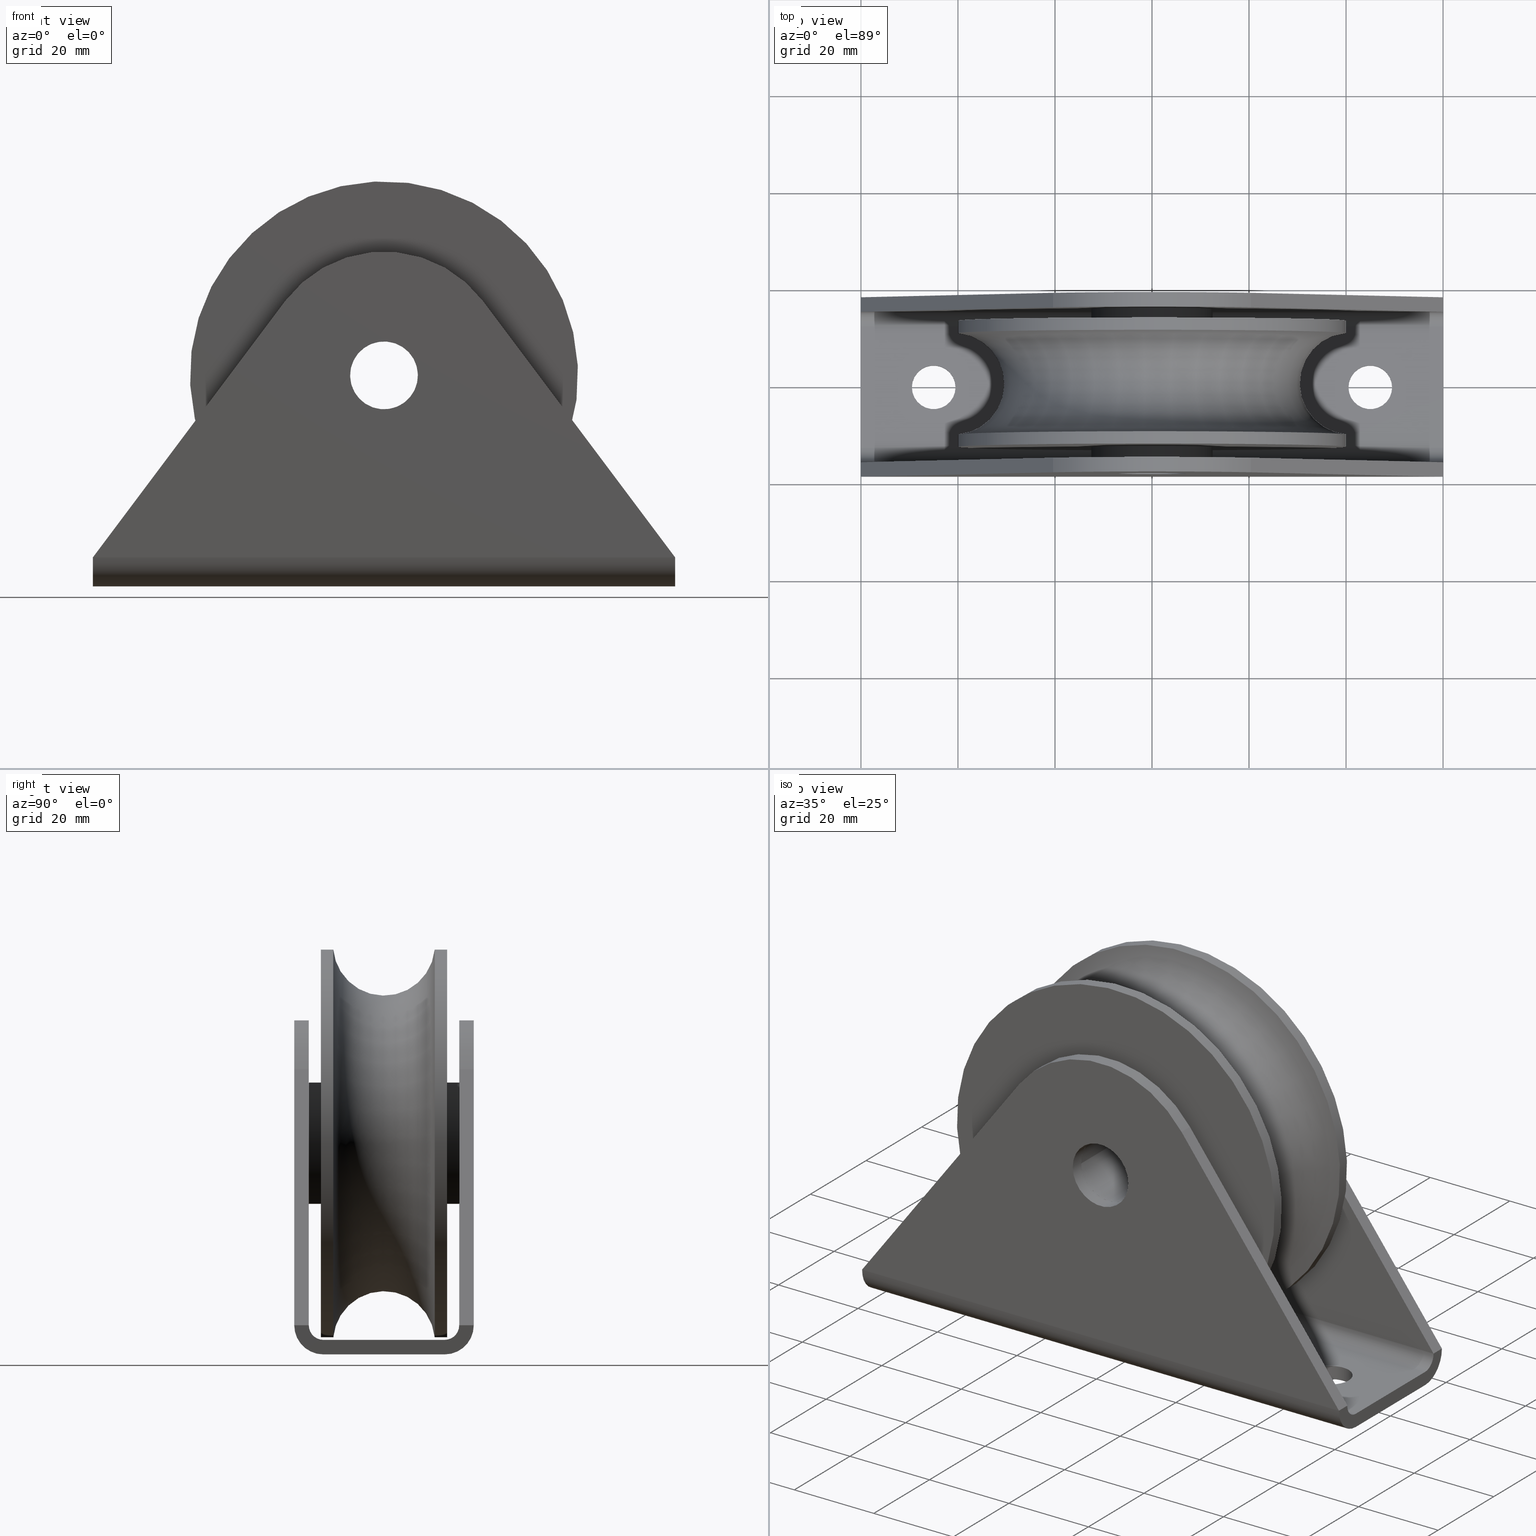
[diagram: canonical four-view strip — front | top / right | iso, engineering-drawing reading convention]
A machine part, canonical four-view strip (front | top / right | iso — engineering-drawing reading convention). The complete STEP part file that produces these views, byte-faithful:
ISO-10303-21;
HEADER;
/* Generated by software containing ST-Developer
 * from STEP Tools, Inc. (www.steptools.com) 
 */

FILE_DESCRIPTION(
/* description */ ('Lamiera'),
/* implementation_level */ '2;1');

FILE_NAME(
/* name */ 
'Q:\\Catalogo\\2_Accessori Dierre\\Per Download Web e catalogo cartace
o\\CATALOGO PIEDI E SOSTEGNI\\PAGINA 53\\CRUCC0000003.stp',
/* time_stamp */ '2018-11-06T11:19:53+01:00',
/* author */ ('fzagni'),
/* organization */ (''),
/* preprocessor_version */ 'ST-DEVELOPER v16.1',
/* originating_system */ 'Autodesk Inventor 2016',
/* authorisation */ '');

FILE_SCHEMA (('AUTOMOTIVE_DESIGN { 1 0 10303 214 3 1 1 }'));
ENDSEC;

DATA;
#10=MECHANICAL_DESIGN_GEOMETRIC_PRESENTATION_REPRESENTATION('',(#25,#24),
#936);
#11=ITEM_DEFINED_TRANSFORMATION($,$,#539,#608);
#12=ITEM_DEFINED_TRANSFORMATION($,$,#586,#609);
#13=(
REPRESENTATION_RELATIONSHIP($,$,#951,#953)
REPRESENTATION_RELATIONSHIP_WITH_TRANSFORMATION(#11)
SHAPE_REPRESENTATION_RELATIONSHIP()
);
#14=(
REPRESENTATION_RELATIONSHIP($,$,#952,#953)
REPRESENTATION_RELATIONSHIP_WITH_TRANSFORMATION(#12)
SHAPE_REPRESENTATION_RELATIONSHIP()
);
#15=CONTEXT_DEPENDENT_SHAPE_REPRESENTATION(#13,#949);
#16=CONTEXT_DEPENDENT_SHAPE_REPRESENTATION(#14,#950);
#17=NEXT_ASSEMBLY_USAGE_OCCURRENCE('3DSD002097.ipt:2',
'3DSD002097.ipt:2','3DSD002097.ipt:2',#957,#955,'3DSD002097.ipt:2');
#18=NEXT_ASSEMBLY_USAGE_OCCURRENCE('3DSD002096.ipt:3',
'3DSD002096.ipt:3','3DSD002096.ipt:3',#957,#956,'3DSD002096.ipt:3');
#19=TOROIDAL_SURFACE('',#596,41.,10.5);
#20=SHAPE_REPRESENTATION_RELATIONSHIP('SRR','None',#951,#22);
#21=SHAPE_REPRESENTATION_RELATIONSHIP('SRR','None',#952,#23);
#22=ADVANCED_BREP_SHAPE_REPRESENTATION('',(#26),#933);
#23=ADVANCED_BREP_SHAPE_REPRESENTATION('',(#27),#934);
#24=STYLED_ITEM('',(#970),#26);
#25=STYLED_ITEM('',(#970),#27);
#26=MANIFOLD_SOLID_BREP('Solido1',#537);
#27=MANIFOLD_SOLID_BREP('Solido1',#538);
#28=LINE('',#798,#60);
#29=LINE('',#800,#61);
#30=LINE('',#802,#62);
#31=LINE('',#803,#63);
#32=LINE('',#807,#64);
#33=LINE('',#809,#65);
#34=LINE('',#811,#66);
#35=LINE('',#812,#67);
#36=LINE('',#821,#68);
#37=LINE('',#824,#69);
#38=LINE('',#827,#70);
#39=LINE('',#829,#71);
#40=LINE('',#830,#72);
#41=LINE('',#833,#73);
#42=LINE('',#835,#74);
#43=LINE('',#836,#75);
#44=LINE('',#838,#76);
#45=LINE('',#842,#77);
#46=LINE('',#855,#78);
#47=LINE('',#858,#79);
#48=LINE('',#862,#80);
#49=LINE('',#865,#81);
#50=LINE('',#868,#82);
#51=LINE('',#870,#83);
#52=LINE('',#874,#84);
#53=LINE('',#879,#85);
#54=LINE('',#882,#86);
#55=LINE('',#886,#87);
#56=LINE('',#888,#88);
#57=LINE('',#889,#89);
#58=LINE('',#891,#90);
#59=LINE('',#893,#91);
#60=VECTOR('',#626,66.);
#61=VECTOR('',#627,3.);
#62=VECTOR('',#628,66.);
#63=VECTOR('',#629,3.);
#64=VECTOR('',#632,66.);
#65=VECTOR('',#633,3.);
#66=VECTOR('',#634,66.);
#67=VECTOR('',#635,3.);
#68=VECTOR('',#646,3.);
#69=VECTOR('',#649,3.);
#70=VECTOR('',#652,66.);
#71=VECTOR('',#653,3.);
#72=VECTOR('',#654,66.);
#73=VECTOR('',#657,66.);
#74=VECTOR('',#658,66.);
#75=VECTOR('',#659,3.);
#76=VECTOR('',#662,120.);
#77=VECTOR('',#667,120.);
#78=VECTOR('',#682,120.);
#79=VECTOR('',#687,120.);
#80=VECTOR('',#692,3.);
#81=VECTOR('',#695,3.);
#82=VECTOR('',#700,120.);
#83=VECTOR('',#703,120.);
#84=VECTOR('',#706,120.);
#85=VECTOR('',#713,3.);
#86=VECTOR('',#716,3.);
#87=VECTOR('',#723,120.);
#88=VECTOR('',#726,25.);
#89=VECTOR('',#727,25.);
#90=VECTOR('',#730,25.);
#91=VECTOR('',#733,25.);
#92=PLANE('',#546);
#93=PLANE('',#547);
#94=PLANE('',#554);
#95=PLANE('',#555);
#96=PLANE('',#556);
#97=PLANE('',#558);
#98=PLANE('',#567);
#99=PLANE('',#568);
#100=PLANE('',#570);
#101=PLANE('',#576);
#102=PLANE('',#578);
#103=PLANE('',#580);
#104=PLANE('',#582);
#105=PLANE('',#583);
#106=PLANE('',#584);
#107=PLANE('',#585);
#108=PLANE('',#587);
#109=PLANE('',#592);
#110=PLANE('',#600);
#111=PLANE('',#604);
#112=FACE_BOUND('',#171,.T.);
#113=FACE_BOUND('',#173,.T.);
#114=FACE_BOUND('',#181,.T.);
#115=FACE_BOUND('',#183,.T.);
#116=FACE_BOUND('',#185,.T.);
#117=FACE_BOUND('',#187,.T.);
#118=FACE_BOUND('',#190,.T.);
#119=FACE_BOUND('',#198,.T.);
#120=FACE_BOUND('',#202,.T.);
#121=FACE_BOUND('',#203,.T.);
#122=FACE_BOUND('',#206,.T.);
#123=FACE_BOUND('',#207,.T.);
#124=FACE_BOUND('',#209,.T.);
#125=FACE_BOUND('',#211,.T.);
#126=FACE_BOUND('',#213,.T.);
#127=FACE_BOUND('',#215,.T.);
#128=FACE_BOUND('',#217,.T.);
#129=FACE_BOUND('',#219,.T.);
#130=FACE_BOUND('',#221,.T.);
#131=FACE_BOUND('',#223,.T.);
#132=FACE_BOUND('',#225,.T.);
#133=FACE_BOUND('',#227,.T.);
#134=FACE_OUTER_BOUND('',#170,.T.);
#135=FACE_OUTER_BOUND('',#172,.T.);
#136=FACE_OUTER_BOUND('',#174,.T.);
#137=FACE_OUTER_BOUND('',#175,.T.);
#138=FACE_OUTER_BOUND('',#176,.T.);
#139=FACE_OUTER_BOUND('',#177,.T.);
#140=FACE_OUTER_BOUND('',#178,.T.);
#141=FACE_OUTER_BOUND('',#179,.T.);
#142=FACE_OUTER_BOUND('',#180,.T.);
#143=FACE_OUTER_BOUND('',#182,.T.);
#144=FACE_OUTER_BOUND('',#184,.T.);
#145=FACE_OUTER_BOUND('',#186,.T.);
#146=FACE_OUTER_BOUND('',#188,.T.);
#147=FACE_OUTER_BOUND('',#189,.T.);
#148=FACE_OUTER_BOUND('',#191,.T.);
#149=FACE_OUTER_BOUND('',#192,.T.);
#150=FACE_OUTER_BOUND('',#193,.T.);
#151=FACE_OUTER_BOUND('',#194,.T.);
#152=FACE_OUTER_BOUND('',#195,.T.);
#153=FACE_OUTER_BOUND('',#196,.T.);
#154=FACE_OUTER_BOUND('',#197,.T.);
#155=FACE_OUTER_BOUND('',#199,.T.);
#156=FACE_OUTER_BOUND('',#200,.T.);
#157=FACE_OUTER_BOUND('',#201,.T.);
#158=FACE_OUTER_BOUND('',#204,.T.);
#159=FACE_OUTER_BOUND('',#205,.T.);
#160=FACE_OUTER_BOUND('',#208,.T.);
#161=FACE_OUTER_BOUND('',#210,.T.);
#162=FACE_OUTER_BOUND('',#212,.T.);
#163=FACE_OUTER_BOUND('',#214,.T.);
#164=FACE_OUTER_BOUND('',#216,.T.);
#165=FACE_OUTER_BOUND('',#218,.T.);
#166=FACE_OUTER_BOUND('',#220,.T.);
#167=FACE_OUTER_BOUND('',#222,.T.);
#168=FACE_OUTER_BOUND('',#224,.T.);
#169=FACE_OUTER_BOUND('',#226,.T.);
#170=EDGE_LOOP('',(#362));
#171=EDGE_LOOP('',(#363));
#172=EDGE_LOOP('',(#364));
#173=EDGE_LOOP('',(#365));
#174=EDGE_LOOP('',(#366,#367,#368,#369));
#175=EDGE_LOOP('',(#370,#371,#372,#373));
#176=EDGE_LOOP('',(#374,#375,#376,#377));
#177=EDGE_LOOP('',(#378,#379,#380,#381));
#178=EDGE_LOOP('',(#382,#383,#384,#385));
#179=EDGE_LOOP('',(#386,#387,#388,#389));
#180=EDGE_LOOP('',(#390,#391,#392,#393));
#181=EDGE_LOOP('',(#394));
#182=EDGE_LOOP('',(#395,#396,#397,#398));
#183=EDGE_LOOP('',(#399));
#184=EDGE_LOOP('',(#400));
#185=EDGE_LOOP('',(#401));
#186=EDGE_LOOP('',(#402));
#187=EDGE_LOOP('',(#403));
#188=EDGE_LOOP('',(#404,#405,#406,#407));
#189=EDGE_LOOP('',(#408,#409,#410,#411));
#190=EDGE_LOOP('',(#412));
#191=EDGE_LOOP('',(#413,#414,#415,#416));
#192=EDGE_LOOP('',(#417,#418,#419,#420));
#193=EDGE_LOOP('',(#421,#422,#423,#424));
#194=EDGE_LOOP('',(#425,#426,#427,#428));
#195=EDGE_LOOP('',(#429,#430,#431,#432));
#196=EDGE_LOOP('',(#433,#434,#435,#436));
#197=EDGE_LOOP('',(#437,#438,#439,#440));
#198=EDGE_LOOP('',(#441));
#199=EDGE_LOOP('',(#442,#443,#444,#445));
#200=EDGE_LOOP('',(#446,#447,#448,#449));
#201=EDGE_LOOP('',(#450,#451,#452,#453));
#202=EDGE_LOOP('',(#454));
#203=EDGE_LOOP('',(#455));
#204=EDGE_LOOP('',(#456,#457,#458,#459));
#205=EDGE_LOOP('',(#460,#461,#462,#463));
#206=EDGE_LOOP('',(#464));
#207=EDGE_LOOP('',(#465));
#208=EDGE_LOOP('',(#466));
#209=EDGE_LOOP('',(#467));
#210=EDGE_LOOP('',(#468));
#211=EDGE_LOOP('',(#469));
#212=EDGE_LOOP('',(#470));
#213=EDGE_LOOP('',(#471));
#214=EDGE_LOOP('',(#472));
#215=EDGE_LOOP('',(#473));
#216=EDGE_LOOP('',(#474));
#217=EDGE_LOOP('',(#475));
#218=EDGE_LOOP('',(#476));
#219=EDGE_LOOP('',(#477));
#220=EDGE_LOOP('',(#478));
#221=EDGE_LOOP('',(#479));
#222=EDGE_LOOP('',(#480));
#223=EDGE_LOOP('',(#481));
#224=EDGE_LOOP('',(#482));
#225=EDGE_LOOP('',(#483));
#226=EDGE_LOOP('',(#484));
#227=EDGE_LOOP('',(#485));
#228=CIRCLE('',#541,4.5);
#229=CIRCLE('',#542,4.5);
#230=CIRCLE('',#544,4.5);
#231=CIRCLE('',#545,4.5);
#232=CIRCLE('',#549,25.5);
#233=CIRCLE('',#550,25.5);
#234=CIRCLE('',#552,25.5);
#235=CIRCLE('',#553,25.5);
#236=CIRCLE('',#557,7.);
#237=CIRCLE('',#559,7.);
#238=CIRCLE('',#561,7.);
#239=CIRCLE('',#563,7.);
#240=CIRCLE('',#565,6.);
#241=CIRCLE('',#566,6.);
#242=CIRCLE('',#569,3.);
#243=CIRCLE('',#571,3.);
#244=CIRCLE('',#574,6.);
#245=CIRCLE('',#575,6.);
#246=CIRCLE('',#577,3.);
#247=CIRCLE('',#579,3.);
#248=CIRCLE('',#588,12.5);
#249=CIRCLE('',#589,7.);
#250=CIRCLE('',#591,12.5);
#251=CIRCLE('',#593,40.);
#252=CIRCLE('',#595,40.);
#253=CIRCLE('',#597,40.);
#254=CIRCLE('',#599,40.);
#255=CIRCLE('',#601,12.5);
#256=CIRCLE('',#603,12.5);
#257=CIRCLE('',#605,7.);
#258=VERTEX_POINT('',#786);
#259=VERTEX_POINT('',#788);
#260=VERTEX_POINT('',#791);
#261=VERTEX_POINT('',#793);
#262=VERTEX_POINT('',#796);
#263=VERTEX_POINT('',#797);
#264=VERTEX_POINT('',#799);
#265=VERTEX_POINT('',#801);
#266=VERTEX_POINT('',#805);
#267=VERTEX_POINT('',#806);
#268=VERTEX_POINT('',#808);
#269=VERTEX_POINT('',#810);
#270=VERTEX_POINT('',#817);
#271=VERTEX_POINT('',#818);
#272=VERTEX_POINT('',#820);
#273=VERTEX_POINT('',#822);
#274=VERTEX_POINT('',#826);
#275=VERTEX_POINT('',#828);
#276=VERTEX_POINT('',#832);
#277=VERTEX_POINT('',#834);
#278=VERTEX_POINT('',#839);
#279=VERTEX_POINT('',#843);
#280=VERTEX_POINT('',#846);
#281=VERTEX_POINT('',#849);
#282=VERTEX_POINT('',#852);
#283=VERTEX_POINT('',#854);
#284=VERTEX_POINT('',#860);
#285=VERTEX_POINT('',#864);
#286=VERTEX_POINT('',#871);
#287=VERTEX_POINT('',#873);
#288=VERTEX_POINT('',#877);
#289=VERTEX_POINT('',#881);
#290=VERTEX_POINT('',#897);
#291=VERTEX_POINT('',#899);
#292=VERTEX_POINT('',#902);
#293=VERTEX_POINT('',#905);
#294=VERTEX_POINT('',#908);
#295=VERTEX_POINT('',#911);
#296=VERTEX_POINT('',#914);
#297=VERTEX_POINT('',#917);
#298=VERTEX_POINT('',#920);
#299=VERTEX_POINT('',#923);
#300=EDGE_CURVE('',#258,#258,#228,.T.);
#301=EDGE_CURVE('',#259,#259,#229,.T.);
#302=EDGE_CURVE('',#260,#260,#230,.T.);
#303=EDGE_CURVE('',#261,#261,#231,.T.);
#304=EDGE_CURVE('',#262,#263,#28,.T.);
#305=EDGE_CURVE('',#264,#262,#29,.T.);
#306=EDGE_CURVE('',#265,#264,#30,.T.);
#307=EDGE_CURVE('',#265,#263,#31,.T.);
#308=EDGE_CURVE('',#266,#267,#32,.T.);
#309=EDGE_CURVE('',#266,#268,#33,.T.);
#310=EDGE_CURVE('',#269,#268,#34,.T.);
#311=EDGE_CURVE('',#269,#267,#35,.T.);
#312=EDGE_CURVE('',#268,#262,#232,.T.);
#313=EDGE_CURVE('',#264,#266,#233,.T.);
#314=EDGE_CURVE('',#270,#271,#234,.T.);
#315=EDGE_CURVE('',#272,#270,#36,.T.);
#316=EDGE_CURVE('',#273,#272,#235,.T.);
#317=EDGE_CURVE('',#273,#271,#37,.T.);
#318=EDGE_CURVE('',#274,#270,#38,.T.);
#319=EDGE_CURVE('',#274,#275,#39,.T.);
#320=EDGE_CURVE('',#272,#275,#40,.T.);
#321=EDGE_CURVE('',#271,#276,#41,.T.);
#322=EDGE_CURVE('',#277,#273,#42,.T.);
#323=EDGE_CURVE('',#277,#276,#43,.T.);
#324=EDGE_CURVE('',#275,#277,#44,.T.);
#325=EDGE_CURVE('',#278,#278,#236,.T.);
#326=EDGE_CURVE('',#267,#265,#45,.T.);
#327=EDGE_CURVE('',#279,#279,#237,.T.);
#328=EDGE_CURVE('',#280,#280,#238,.T.);
#329=EDGE_CURVE('',#281,#281,#239,.T.);
#330=EDGE_CURVE('',#282,#275,#240,.T.);
#331=EDGE_CURVE('',#283,#282,#46,.T.);
#332=EDGE_CURVE('',#277,#283,#241,.T.);
#333=EDGE_CURVE('',#276,#274,#47,.T.);
#334=EDGE_CURVE('',#274,#284,#242,.T.);
#335=EDGE_CURVE('',#282,#284,#48,.T.);
#336=EDGE_CURVE('',#285,#283,#49,.T.);
#337=EDGE_CURVE('',#276,#285,#243,.T.);
#338=EDGE_CURVE('',#284,#285,#50,.T.);
#339=EDGE_CURVE('',#263,#269,#51,.T.);
#340=EDGE_CURVE('',#286,#263,#244,.T.);
#341=EDGE_CURVE('',#287,#286,#52,.T.);
#342=EDGE_CURVE('',#269,#287,#245,.T.);
#343=EDGE_CURVE('',#265,#288,#246,.T.);
#344=EDGE_CURVE('',#286,#288,#53,.T.);
#345=EDGE_CURVE('',#289,#287,#54,.T.);
#346=EDGE_CURVE('',#267,#289,#247,.T.);
#347=EDGE_CURVE('',#288,#289,#55,.T.);
#348=EDGE_CURVE('',#283,#286,#56,.T.);
#349=EDGE_CURVE('',#288,#285,#57,.T.);
#350=EDGE_CURVE('',#287,#282,#58,.T.);
#351=EDGE_CURVE('',#284,#289,#59,.T.);
#352=EDGE_CURVE('',#290,#290,#248,.T.);
#353=EDGE_CURVE('',#291,#291,#249,.T.);
#354=EDGE_CURVE('',#292,#292,#250,.T.);
#355=EDGE_CURVE('',#293,#293,#251,.T.);
#356=EDGE_CURVE('',#294,#294,#252,.T.);
#357=EDGE_CURVE('',#295,#295,#253,.T.);
#358=EDGE_CURVE('',#296,#296,#254,.T.);
#359=EDGE_CURVE('',#297,#297,#255,.T.);
#360=EDGE_CURVE('',#298,#298,#256,.T.);
#361=EDGE_CURVE('',#299,#299,#257,.T.);
#362=ORIENTED_EDGE('',*,*,#300,.F.);
#363=ORIENTED_EDGE('',*,*,#301,.F.);
#364=ORIENTED_EDGE('',*,*,#302,.F.);
#365=ORIENTED_EDGE('',*,*,#303,.F.);
#366=ORIENTED_EDGE('',*,*,#304,.F.);
#367=ORIENTED_EDGE('',*,*,#305,.F.);
#368=ORIENTED_EDGE('',*,*,#306,.F.);
#369=ORIENTED_EDGE('',*,*,#307,.T.);
#370=ORIENTED_EDGE('',*,*,#308,.F.);
#371=ORIENTED_EDGE('',*,*,#309,.T.);
#372=ORIENTED_EDGE('',*,*,#310,.F.);
#373=ORIENTED_EDGE('',*,*,#311,.T.);
#374=ORIENTED_EDGE('',*,*,#312,.F.);
#375=ORIENTED_EDGE('',*,*,#309,.F.);
#376=ORIENTED_EDGE('',*,*,#313,.F.);
#377=ORIENTED_EDGE('',*,*,#305,.T.);
#378=ORIENTED_EDGE('',*,*,#314,.F.);
#379=ORIENTED_EDGE('',*,*,#315,.F.);
#380=ORIENTED_EDGE('',*,*,#316,.F.);
#381=ORIENTED_EDGE('',*,*,#317,.T.);
#382=ORIENTED_EDGE('',*,*,#318,.F.);
#383=ORIENTED_EDGE('',*,*,#319,.T.);
#384=ORIENTED_EDGE('',*,*,#320,.F.);
#385=ORIENTED_EDGE('',*,*,#315,.T.);
#386=ORIENTED_EDGE('',*,*,#321,.F.);
#387=ORIENTED_EDGE('',*,*,#317,.F.);
#388=ORIENTED_EDGE('',*,*,#322,.F.);
#389=ORIENTED_EDGE('',*,*,#323,.T.);
#390=ORIENTED_EDGE('',*,*,#322,.T.);
#391=ORIENTED_EDGE('',*,*,#316,.T.);
#392=ORIENTED_EDGE('',*,*,#320,.T.);
#393=ORIENTED_EDGE('',*,*,#324,.T.);
#394=ORIENTED_EDGE('',*,*,#325,.T.);
#395=ORIENTED_EDGE('',*,*,#306,.T.);
#396=ORIENTED_EDGE('',*,*,#313,.T.);
#397=ORIENTED_EDGE('',*,*,#308,.T.);
#398=ORIENTED_EDGE('',*,*,#326,.T.);
#399=ORIENTED_EDGE('',*,*,#327,.T.);
#400=ORIENTED_EDGE('',*,*,#328,.F.);
#401=ORIENTED_EDGE('',*,*,#327,.F.);
#402=ORIENTED_EDGE('',*,*,#329,.F.);
#403=ORIENTED_EDGE('',*,*,#325,.F.);
#404=ORIENTED_EDGE('',*,*,#324,.F.);
#405=ORIENTED_EDGE('',*,*,#330,.F.);
#406=ORIENTED_EDGE('',*,*,#331,.F.);
#407=ORIENTED_EDGE('',*,*,#332,.F.);
#408=ORIENTED_EDGE('',*,*,#321,.T.);
#409=ORIENTED_EDGE('',*,*,#333,.T.);
#410=ORIENTED_EDGE('',*,*,#318,.T.);
#411=ORIENTED_EDGE('',*,*,#314,.T.);
#412=ORIENTED_EDGE('',*,*,#329,.T.);
#413=ORIENTED_EDGE('',*,*,#319,.F.);
#414=ORIENTED_EDGE('',*,*,#334,.T.);
#415=ORIENTED_EDGE('',*,*,#335,.F.);
#416=ORIENTED_EDGE('',*,*,#330,.T.);
#417=ORIENTED_EDGE('',*,*,#323,.F.);
#418=ORIENTED_EDGE('',*,*,#332,.T.);
#419=ORIENTED_EDGE('',*,*,#336,.F.);
#420=ORIENTED_EDGE('',*,*,#337,.F.);
#421=ORIENTED_EDGE('',*,*,#333,.F.);
#422=ORIENTED_EDGE('',*,*,#337,.T.);
#423=ORIENTED_EDGE('',*,*,#338,.F.);
#424=ORIENTED_EDGE('',*,*,#334,.F.);
#425=ORIENTED_EDGE('',*,*,#339,.F.);
#426=ORIENTED_EDGE('',*,*,#340,.F.);
#427=ORIENTED_EDGE('',*,*,#341,.F.);
#428=ORIENTED_EDGE('',*,*,#342,.F.);
#429=ORIENTED_EDGE('',*,*,#307,.F.);
#430=ORIENTED_EDGE('',*,*,#343,.T.);
#431=ORIENTED_EDGE('',*,*,#344,.F.);
#432=ORIENTED_EDGE('',*,*,#340,.T.);
#433=ORIENTED_EDGE('',*,*,#311,.F.);
#434=ORIENTED_EDGE('',*,*,#342,.T.);
#435=ORIENTED_EDGE('',*,*,#345,.F.);
#436=ORIENTED_EDGE('',*,*,#346,.F.);
#437=ORIENTED_EDGE('',*,*,#304,.T.);
#438=ORIENTED_EDGE('',*,*,#339,.T.);
#439=ORIENTED_EDGE('',*,*,#310,.T.);
#440=ORIENTED_EDGE('',*,*,#312,.T.);
#441=ORIENTED_EDGE('',*,*,#328,.T.);
#442=ORIENTED_EDGE('',*,*,#326,.F.);
#443=ORIENTED_EDGE('',*,*,#346,.T.);
#444=ORIENTED_EDGE('',*,*,#347,.F.);
#445=ORIENTED_EDGE('',*,*,#343,.F.);
#446=ORIENTED_EDGE('',*,*,#336,.T.);
#447=ORIENTED_EDGE('',*,*,#348,.T.);
#448=ORIENTED_EDGE('',*,*,#344,.T.);
#449=ORIENTED_EDGE('',*,*,#349,.T.);
#450=ORIENTED_EDGE('',*,*,#331,.T.);
#451=ORIENTED_EDGE('',*,*,#350,.F.);
#452=ORIENTED_EDGE('',*,*,#341,.T.);
#453=ORIENTED_EDGE('',*,*,#348,.F.);
#454=ORIENTED_EDGE('',*,*,#301,.T.);
#455=ORIENTED_EDGE('',*,*,#303,.T.);
#456=ORIENTED_EDGE('',*,*,#335,.T.);
#457=ORIENTED_EDGE('',*,*,#351,.T.);
#458=ORIENTED_EDGE('',*,*,#345,.T.);
#459=ORIENTED_EDGE('',*,*,#350,.T.);
#460=ORIENTED_EDGE('',*,*,#338,.T.);
#461=ORIENTED_EDGE('',*,*,#349,.F.);
#462=ORIENTED_EDGE('',*,*,#347,.T.);
#463=ORIENTED_EDGE('',*,*,#351,.F.);
#464=ORIENTED_EDGE('',*,*,#300,.T.);
#465=ORIENTED_EDGE('',*,*,#302,.T.);
#466=ORIENTED_EDGE('',*,*,#352,.F.);
#467=ORIENTED_EDGE('',*,*,#353,.T.);
#468=ORIENTED_EDGE('',*,*,#354,.F.);
#469=ORIENTED_EDGE('',*,*,#352,.T.);
#470=ORIENTED_EDGE('',*,*,#355,.F.);
#471=ORIENTED_EDGE('',*,*,#354,.T.);
#472=ORIENTED_EDGE('',*,*,#356,.F.);
#473=ORIENTED_EDGE('',*,*,#355,.T.);
#474=ORIENTED_EDGE('',*,*,#357,.F.);
#475=ORIENTED_EDGE('',*,*,#356,.T.);
#476=ORIENTED_EDGE('',*,*,#358,.F.);
#477=ORIENTED_EDGE('',*,*,#357,.T.);
#478=ORIENTED_EDGE('',*,*,#358,.T.);
#479=ORIENTED_EDGE('',*,*,#359,.F.);
#480=ORIENTED_EDGE('',*,*,#360,.F.);
#481=ORIENTED_EDGE('',*,*,#359,.T.);
#482=ORIENTED_EDGE('',*,*,#360,.T.);
#483=ORIENTED_EDGE('',*,*,#361,.F.);
#484=ORIENTED_EDGE('',*,*,#353,.F.);
#485=ORIENTED_EDGE('',*,*,#361,.T.);
#486=CYLINDRICAL_SURFACE('',#540,4.5);
#487=CYLINDRICAL_SURFACE('',#543,4.5);
#488=CYLINDRICAL_SURFACE('',#548,25.5);
#489=CYLINDRICAL_SURFACE('',#551,25.5);
#490=CYLINDRICAL_SURFACE('',#560,7.);
#491=CYLINDRICAL_SURFACE('',#562,7.);
#492=CYLINDRICAL_SURFACE('',#564,6.);
#493=CYLINDRICAL_SURFACE('',#572,3.);
#494=CYLINDRICAL_SURFACE('',#573,6.);
#495=CYLINDRICAL_SURFACE('',#581,3.);
#496=CYLINDRICAL_SURFACE('',#590,12.5);
#497=CYLINDRICAL_SURFACE('',#594,40.);
#498=CYLINDRICAL_SURFACE('',#598,40.);
#499=CYLINDRICAL_SURFACE('',#602,12.5);
#500=CYLINDRICAL_SURFACE('',#606,7.);
#501=ADVANCED_FACE('',(#134,#112),#486,.F.);
#502=ADVANCED_FACE('',(#135,#113),#487,.F.);
#503=ADVANCED_FACE('',(#136),#92,.F.);
#504=ADVANCED_FACE('',(#137),#93,.F.);
#505=ADVANCED_FACE('',(#138),#488,.T.);
#506=ADVANCED_FACE('',(#139),#489,.T.);
#507=ADVANCED_FACE('',(#140),#94,.F.);
#508=ADVANCED_FACE('',(#141),#95,.F.);
#509=ADVANCED_FACE('',(#142,#114),#96,.F.);
#510=ADVANCED_FACE('',(#143,#115),#97,.T.);
#511=ADVANCED_FACE('',(#144,#116),#490,.F.);
#512=ADVANCED_FACE('',(#145,#117),#491,.F.);
#513=ADVANCED_FACE('',(#146),#492,.T.);
#514=ADVANCED_FACE('',(#147,#118),#98,.T.);
#515=ADVANCED_FACE('',(#148),#99,.T.);
#516=ADVANCED_FACE('',(#149),#100,.T.);
#517=ADVANCED_FACE('',(#150),#493,.F.);
#518=ADVANCED_FACE('',(#151),#494,.T.);
#519=ADVANCED_FACE('',(#152),#101,.T.);
#520=ADVANCED_FACE('',(#153),#102,.T.);
#521=ADVANCED_FACE('',(#154,#119),#103,.F.);
#522=ADVANCED_FACE('',(#155),#495,.F.);
#523=ADVANCED_FACE('',(#156),#104,.T.);
#524=ADVANCED_FACE('',(#157,#120,#121),#105,.F.);
#525=ADVANCED_FACE('',(#158),#106,.T.);
#526=ADVANCED_FACE('',(#159,#122,#123),#107,.T.);
#527=ADVANCED_FACE('',(#160,#124),#108,.T.);
#528=ADVANCED_FACE('',(#161,#125),#496,.T.);
#529=ADVANCED_FACE('',(#162,#126),#109,.T.);
#530=ADVANCED_FACE('',(#163,#127),#497,.T.);
#531=ADVANCED_FACE('',(#164,#128),#19,.F.);
#532=ADVANCED_FACE('',(#165,#129),#498,.T.);
#533=ADVANCED_FACE('',(#166,#130),#110,.T.);
#534=ADVANCED_FACE('',(#167,#131),#499,.T.);
#535=ADVANCED_FACE('',(#168,#132),#111,.T.);
#536=ADVANCED_FACE('',(#169,#133),#500,.F.);
#537=CLOSED_SHELL('',(#501,#502,#503,#504,#505,#506,#507,#508,#509,#510,
#511,#512,#513,#514,#515,#516,#517,#518,#519,#520,#521,#522,#523,#524,#525,
#526));
#538=CLOSED_SHELL('',(#527,#528,#529,#530,#531,#532,#533,#534,#535,#536));
#539=AXIS2_PLACEMENT_3D('placement',#784,#610,#611);
#540=AXIS2_PLACEMENT_3D('',#785,#612,#613);
#541=AXIS2_PLACEMENT_3D('',#787,#614,#615);
#542=AXIS2_PLACEMENT_3D('',#789,#616,#617);
#543=AXIS2_PLACEMENT_3D('',#790,#618,#619);
#544=AXIS2_PLACEMENT_3D('',#792,#620,#621);
#545=AXIS2_PLACEMENT_3D('',#794,#622,#623);
#546=AXIS2_PLACEMENT_3D('',#795,#624,#625);
#547=AXIS2_PLACEMENT_3D('',#804,#630,#631);
#548=AXIS2_PLACEMENT_3D('',#813,#636,#637);
#549=AXIS2_PLACEMENT_3D('',#814,#638,#639);
#550=AXIS2_PLACEMENT_3D('',#815,#640,#641);
#551=AXIS2_PLACEMENT_3D('',#816,#642,#643);
#552=AXIS2_PLACEMENT_3D('',#819,#644,#645);
#553=AXIS2_PLACEMENT_3D('',#823,#647,#648);
#554=AXIS2_PLACEMENT_3D('',#825,#650,#651);
#555=AXIS2_PLACEMENT_3D('',#831,#655,#656);
#556=AXIS2_PLACEMENT_3D('',#837,#660,#661);
#557=AXIS2_PLACEMENT_3D('',#840,#663,#664);
#558=AXIS2_PLACEMENT_3D('',#841,#665,#666);
#559=AXIS2_PLACEMENT_3D('',#844,#668,#669);
#560=AXIS2_PLACEMENT_3D('',#845,#670,#671);
#561=AXIS2_PLACEMENT_3D('',#847,#672,#673);
#562=AXIS2_PLACEMENT_3D('',#848,#674,#675);
#563=AXIS2_PLACEMENT_3D('',#850,#676,#677);
#564=AXIS2_PLACEMENT_3D('',#851,#678,#679);
#565=AXIS2_PLACEMENT_3D('',#853,#680,#681);
#566=AXIS2_PLACEMENT_3D('',#856,#683,#684);
#567=AXIS2_PLACEMENT_3D('',#857,#685,#686);
#568=AXIS2_PLACEMENT_3D('',#859,#688,#689);
#569=AXIS2_PLACEMENT_3D('',#861,#690,#691);
#570=AXIS2_PLACEMENT_3D('',#863,#693,#694);
#571=AXIS2_PLACEMENT_3D('',#866,#696,#697);
#572=AXIS2_PLACEMENT_3D('',#867,#698,#699);
#573=AXIS2_PLACEMENT_3D('',#869,#701,#702);
#574=AXIS2_PLACEMENT_3D('',#872,#704,#705);
#575=AXIS2_PLACEMENT_3D('',#875,#707,#708);
#576=AXIS2_PLACEMENT_3D('',#876,#709,#710);
#577=AXIS2_PLACEMENT_3D('',#878,#711,#712);
#578=AXIS2_PLACEMENT_3D('',#880,#714,#715);
#579=AXIS2_PLACEMENT_3D('',#883,#717,#718);
#580=AXIS2_PLACEMENT_3D('',#884,#719,#720);
#581=AXIS2_PLACEMENT_3D('',#885,#721,#722);
#582=AXIS2_PLACEMENT_3D('',#887,#724,#725);
#583=AXIS2_PLACEMENT_3D('',#890,#728,#729);
#584=AXIS2_PLACEMENT_3D('',#892,#731,#732);
#585=AXIS2_PLACEMENT_3D('',#894,#734,#735);
#586=AXIS2_PLACEMENT_3D('placement',#895,#736,#737);
#587=AXIS2_PLACEMENT_3D('',#896,#738,#739);
#588=AXIS2_PLACEMENT_3D('',#898,#740,#741);
#589=AXIS2_PLACEMENT_3D('',#900,#742,#743);
#590=AXIS2_PLACEMENT_3D('',#901,#744,#745);
#591=AXIS2_PLACEMENT_3D('',#903,#746,#747);
#592=AXIS2_PLACEMENT_3D('',#904,#748,#749);
#593=AXIS2_PLACEMENT_3D('',#906,#750,#751);
#594=AXIS2_PLACEMENT_3D('',#907,#752,#753);
#595=AXIS2_PLACEMENT_3D('',#909,#754,#755);
#596=AXIS2_PLACEMENT_3D('',#910,#756,#757);
#597=AXIS2_PLACEMENT_3D('',#912,#758,#759);
#598=AXIS2_PLACEMENT_3D('',#913,#760,#761);
#599=AXIS2_PLACEMENT_3D('',#915,#762,#763);
#600=AXIS2_PLACEMENT_3D('',#916,#764,#765);
#601=AXIS2_PLACEMENT_3D('',#918,#766,#767);
#602=AXIS2_PLACEMENT_3D('',#919,#768,#769);
#603=AXIS2_PLACEMENT_3D('',#921,#770,#771);
#604=AXIS2_PLACEMENT_3D('',#922,#772,#773);
#605=AXIS2_PLACEMENT_3D('',#924,#774,#775);
#606=AXIS2_PLACEMENT_3D('',#925,#776,#777);
#607=AXIS2_PLACEMENT_3D('placement',#926,#778,#779);
#608=AXIS2_PLACEMENT_3D('',#927,#780,#781);
#609=AXIS2_PLACEMENT_3D('',#928,#782,#783);
#610=DIRECTION('axis',(0.,0.,1.));
#611=DIRECTION('refdir',(1.,0.,0.));
#612=DIRECTION('center_axis',(0.,0.,-1.));
#613=DIRECTION('ref_axis',(-1.,0.,0.));
#614=DIRECTION('center_axis',(0.,0.,-1.));
#615=DIRECTION('ref_axis',(-1.,0.,0.));
#616=DIRECTION('center_axis',(0.,0.,1.));
#617=DIRECTION('ref_axis',(-1.,0.,0.));
#618=DIRECTION('center_axis',(0.,0.,-1.));
#619=DIRECTION('ref_axis',(-1.,0.,0.));
#620=DIRECTION('center_axis',(0.,0.,-1.));
#621=DIRECTION('ref_axis',(-1.,0.,0.));
#622=DIRECTION('center_axis',(0.,0.,1.));
#623=DIRECTION('ref_axis',(-1.,0.,0.));
#624=DIRECTION('center_axis',(-0.8,3.60072332310862E-17,-0.6));
#625=DIRECTION('ref_axis',(-0.6,0.,0.8));
#626=DIRECTION('',(0.6,-5.32604184902594E-17,-0.8));
#627=DIRECTION('',(0.,1.,6.00120553851436E-17));
#628=DIRECTION('',(-0.6,5.32604184902594E-17,0.8));
#629=DIRECTION('',(0.,1.,-6.12323399573677E-17));
#630=DIRECTION('center_axis',(0.8,3.60072332310861E-17,-0.6));
#631=DIRECTION('ref_axis',(-0.6,0.,-0.8));
#632=DIRECTION('',(-0.6,-5.32604184902594E-17,-0.8));
#633=DIRECTION('',(0.,1.,6.00120553851436E-17));
#634=DIRECTION('',(0.6,5.32604184902594E-17,0.8));
#635=DIRECTION('',(0.,-1.,6.12323399573677E-17));
#636=DIRECTION('center_axis',(0.,1.,0.));
#637=DIRECTION('ref_axis',(1.,0.,3.00045069437739E-51));
#638=DIRECTION('center_axis',(-4.50683757946983E-35,1.,-6.65755231128242E-17));
#639=DIRECTION('ref_axis',(1.,0.,3.00045069437739E-51));
#640=DIRECTION('center_axis',(-4.50683757946983E-35,-1.,6.65755231128242E-17));
#641=DIRECTION('ref_axis',(1.,0.,3.00045069437739E-51));
#642=DIRECTION('center_axis',(0.,1.,0.));
#643=DIRECTION('ref_axis',(1.,0.,3.00045069437739E-51));
#644=DIRECTION('center_axis',(4.50683757946983E-35,1.,6.65755231128242E-17));
#645=DIRECTION('ref_axis',(1.,0.,3.00045069437739E-51));
#646=DIRECTION('',(0.,1.,6.00120553851436E-17));
#647=DIRECTION('center_axis',(4.50683757946983E-35,-1.,-6.65755231128242E-17));
#648=DIRECTION('ref_axis',(1.,0.,3.00045069437739E-51));
#649=DIRECTION('',(0.,1.,6.00120553851436E-17));
#650=DIRECTION('center_axis',(0.8,3.60072332310861E-17,-0.6));
#651=DIRECTION('ref_axis',(-0.6,0.,-0.8));
#652=DIRECTION('',(0.6,-5.32604184902594E-17,0.8));
#653=DIRECTION('',(0.,-1.,-6.12323399573677E-17));
#654=DIRECTION('',(-0.6,5.32604184902594E-17,-0.8));
#655=DIRECTION('center_axis',(-0.8,3.60072332310862E-17,-0.6));
#656=DIRECTION('ref_axis',(-0.6,0.,0.8));
#657=DIRECTION('',(0.6,5.32604184902594E-17,-0.8));
#658=DIRECTION('',(-0.6,-5.32604184902594E-17,0.8));
#659=DIRECTION('',(0.,1.,6.12323399573677E-17));
#660=DIRECTION('center_axis',(-4.50683757946983E-35,1.,6.65755231128242E-17));
#661=DIRECTION('ref_axis',(1.,0.,0.));
#662=DIRECTION('',(1.,4.50683757946983E-35,2.75964210798737E-51));
#663=DIRECTION('center_axis',(-4.50683757946983E-35,1.,6.65755231128242E-17));
#664=DIRECTION('ref_axis',(1.,4.50683757946983E-35,3.00045069437739E-51));
#665=DIRECTION('center_axis',(-4.50683757946983E-35,-1.,6.65755231128242E-17));
#666=DIRECTION('ref_axis',(1.,0.,0.));
#667=DIRECTION('',(1.,-4.50683757946983E-35,2.75964210798737E-51));
#668=DIRECTION('center_axis',(4.50683757946983E-35,1.,-6.65755231128242E-17));
#669=DIRECTION('ref_axis',(1.,4.50683757946983E-35,3.00045069437739E-51));
#670=DIRECTION('center_axis',(4.50683757946983E-35,-1.,-6.65755231128242E-17));
#671=DIRECTION('ref_axis',(1.,4.50683757946983E-35,3.00045069437739E-51));
#672=DIRECTION('center_axis',(4.50683757946983E-35,-1.,6.65755231128242E-17));
#673=DIRECTION('ref_axis',(1.,4.50683757946983E-35,3.00045069437739E-51));
#674=DIRECTION('center_axis',(4.50683757946983E-35,-1.,-6.65755231128242E-17));
#675=DIRECTION('ref_axis',(1.,4.50683757946983E-35,3.00045069437739E-51));
#676=DIRECTION('center_axis',(-4.50683757946983E-35,-1.,-6.65755231128242E-17));
#677=DIRECTION('ref_axis',(1.,4.50683757946983E-35,3.00045069437739E-51));
#678=DIRECTION('center_axis',(-1.,0.,0.));
#679=DIRECTION('ref_axis',(0.,0.,-1.));
#680=DIRECTION('center_axis',(-1.,0.,0.));
#681=DIRECTION('ref_axis',(0.,0.,-1.));
#682=DIRECTION('',(-1.,0.,0.));
#683=DIRECTION('center_axis',(1.,0.,0.));
#684=DIRECTION('ref_axis',(0.,-1.,0.));
#685=DIRECTION('center_axis',(4.50683757946983E-35,1.,6.65755231128242E-17));
#686=DIRECTION('ref_axis',(1.,0.,0.));
#687=DIRECTION('',(-1.,4.50683757946983E-35,2.75964210798737E-51));
#688=DIRECTION('center_axis',(-1.,0.,0.));
#689=DIRECTION('ref_axis',(0.,0.,1.));
#690=DIRECTION('center_axis',(1.,0.,0.));
#691=DIRECTION('ref_axis',(0.,-1.,0.));
#692=DIRECTION('',(0.,0.,1.));
#693=DIRECTION('center_axis',(1.,0.,0.));
#694=DIRECTION('ref_axis',(0.,0.,-1.));
#695=DIRECTION('',(0.,0.,-1.));
#696=DIRECTION('center_axis',(1.,0.,0.));
#697=DIRECTION('ref_axis',(0.,-1.,0.));
#698=DIRECTION('center_axis',(-1.,0.,0.));
#699=DIRECTION('ref_axis',(0.,0.,-1.));
#700=DIRECTION('',(1.,0.,0.));
#701=DIRECTION('center_axis',(1.,0.,0.));
#702=DIRECTION('ref_axis',(0.,0.,-1.));
#703=DIRECTION('',(-1.,-4.50683757946983E-35,2.75964210798737E-51));
#704=DIRECTION('center_axis',(1.,0.,0.));
#705=DIRECTION('ref_axis',(0.,0.,-1.));
#706=DIRECTION('',(1.,0.,0.));
#707=DIRECTION('center_axis',(-1.,0.,0.));
#708=DIRECTION('ref_axis',(0.,1.,0.));
#709=DIRECTION('center_axis',(1.,0.,0.));
#710=DIRECTION('ref_axis',(0.,0.,-1.));
#711=DIRECTION('center_axis',(-1.,0.,0.));
#712=DIRECTION('ref_axis',(0.,1.,0.));
#713=DIRECTION('',(0.,0.,1.));
#714=DIRECTION('center_axis',(-1.,0.,0.));
#715=DIRECTION('ref_axis',(0.,0.,1.));
#716=DIRECTION('',(0.,0.,-1.));
#717=DIRECTION('center_axis',(-1.,0.,0.));
#718=DIRECTION('ref_axis',(0.,1.,0.));
#719=DIRECTION('center_axis',(4.50683757946983E-35,-1.,6.65755231128242E-17));
#720=DIRECTION('ref_axis',(1.,0.,0.));
#721=DIRECTION('center_axis',(1.,0.,0.));
#722=DIRECTION('ref_axis',(0.,0.,-1.));
#723=DIRECTION('',(-1.,0.,0.));
#724=DIRECTION('center_axis',(1.,0.,0.));
#725=DIRECTION('ref_axis',(0.,0.,-1.));
#726=DIRECTION('',(0.,1.,0.));
#727=DIRECTION('',(0.,-1.,0.));
#728=DIRECTION('center_axis',(0.,0.,1.));
#729=DIRECTION('ref_axis',(1.,0.,0.));
#730=DIRECTION('',(0.,-1.,0.));
#731=DIRECTION('center_axis',(-1.,0.,0.));
#732=DIRECTION('ref_axis',(0.,0.,1.));
#733=DIRECTION('',(0.,1.,0.));
#734=DIRECTION('center_axis',(0.,0.,1.));
#735=DIRECTION('ref_axis',(1.,0.,0.));
#736=DIRECTION('axis',(0.,0.,1.));
#737=DIRECTION('refdir',(1.,0.,0.));
#738=DIRECTION('center_axis',(-1.,0.,0.));
#739=DIRECTION('ref_axis',(0.,0.,1.));
#740=DIRECTION('center_axis',(1.,0.,0.));
#741=DIRECTION('ref_axis',(0.,1.,0.));
#742=DIRECTION('center_axis',(1.,0.,0.));
#743=DIRECTION('ref_axis',(0.,1.,0.));
#744=DIRECTION('center_axis',(1.,0.,0.));
#745=DIRECTION('ref_axis',(0.,1.,0.));
#746=DIRECTION('center_axis',(1.,0.,0.));
#747=DIRECTION('ref_axis',(0.,1.,0.));
#748=DIRECTION('center_axis',(-1.,0.,0.));
#749=DIRECTION('ref_axis',(0.,0.,1.));
#750=DIRECTION('center_axis',(1.,0.,0.));
#751=DIRECTION('ref_axis',(0.,1.,0.));
#752=DIRECTION('center_axis',(1.,0.,0.));
#753=DIRECTION('ref_axis',(0.,1.,0.));
#754=DIRECTION('center_axis',(1.,0.,0.));
#755=DIRECTION('ref_axis',(0.,1.,0.));
#756=DIRECTION('center_axis',(1.,0.,0.));
#757=DIRECTION('ref_axis',(0.,0.,-1.));
#758=DIRECTION('center_axis',(1.,0.,0.));
#759=DIRECTION('ref_axis',(0.,1.,0.));
#760=DIRECTION('center_axis',(1.,0.,0.));
#761=DIRECTION('ref_axis',(0.,1.,0.));
#762=DIRECTION('center_axis',(1.,0.,0.));
#763=DIRECTION('ref_axis',(0.,1.,0.));
#764=DIRECTION('center_axis',(1.,0.,0.));
#765=DIRECTION('ref_axis',(0.,0.,-1.));
#766=DIRECTION('center_axis',(1.,0.,0.));
#767=DIRECTION('ref_axis',(0.,1.,0.));
#768=DIRECTION('center_axis',(1.,0.,0.));
#769=DIRECTION('ref_axis',(0.,1.,0.));
#770=DIRECTION('center_axis',(1.,0.,0.));
#771=DIRECTION('ref_axis',(0.,1.,0.));
#772=DIRECTION('center_axis',(1.,0.,0.));
#773=DIRECTION('ref_axis',(0.,0.,-1.));
#774=DIRECTION('center_axis',(1.,0.,0.));
#775=DIRECTION('ref_axis',(0.,1.,0.));
#776=DIRECTION('center_axis',(1.,0.,0.));
#777=DIRECTION('ref_axis',(0.,1.,0.));
#778=DIRECTION('axis',(0.,0.,1.));
#779=DIRECTION('refdir',(1.,0.,0.));
#780=DIRECTION('',(0.,0.,1.));
#781=DIRECTION('',(1.,0.,0.));
#782=DIRECTION('',(-0.0494218003243648,6.64941675692406E-17,0.998777996179681));
#783=DIRECTION('',(1.15555796663234E-33,1.,-6.65755231128242E-17));
#784=CARTESIAN_POINT('',(0.,0.,0.));
#785=CARTESIAN_POINT('Origin',(45.,0.,143.282936876657));
#786=CARTESIAN_POINT('',(49.5,-5.51091059616309E-16,3.00000000000001));
#787=CARTESIAN_POINT('Origin',(45.,0.,3.00000000000001));
#788=CARTESIAN_POINT('',(40.5,0.,0.));
#789=CARTESIAN_POINT('Origin',(45.,0.,0.));
#790=CARTESIAN_POINT('Origin',(-45.,0.,143.282936876657));
#791=CARTESIAN_POINT('',(-40.5,-5.51091059616309E-16,3.00000000000001));
#792=CARTESIAN_POINT('Origin',(-45.,0.,3.00000000000001));
#793=CARTESIAN_POINT('',(-49.5,0.,0.));
#794=CARTESIAN_POINT('Origin',(-45.,0.,0.));
#795=CARTESIAN_POINT('Origin',(60.,-18.5,6.));
#796=CARTESIAN_POINT('',(20.4,18.5,58.8));
#797=CARTESIAN_POINT('',(60.,18.5,6.));
#798=CARTESIAN_POINT('',(42.4543008158105,18.5,29.3942655789194));
#799=CARTESIAN_POINT('',(20.4,15.5,58.8));
#800=CARTESIAN_POINT('',(20.4,-18.5,58.8));
#801=CARTESIAN_POINT('',(60.,15.5,6.));
#802=CARTESIAN_POINT('',(42.4543008158105,15.5,29.3942655789194));
#803=CARTESIAN_POINT('',(60.,16.16,6.));
#804=CARTESIAN_POINT('Origin',(-20.4,-18.5,58.8));
#805=CARTESIAN_POINT('',(-20.4,15.5,58.8));
#806=CARTESIAN_POINT('',(-60.,15.5,6.));
#807=CARTESIAN_POINT('',(-22.6543008158105,15.5,55.7942655789194));
#808=CARTESIAN_POINT('',(-20.4,18.5,58.8));
#809=CARTESIAN_POINT('',(-20.4,-18.5,58.8));
#810=CARTESIAN_POINT('',(-60.,18.5,6.));
#811=CARTESIAN_POINT('',(-22.6543008158105,18.5,55.7942655789194));
#812=CARTESIAN_POINT('',(-60.,16.16,6.));
#813=CARTESIAN_POINT('Origin',(0.,-18.5,43.5));
#814=CARTESIAN_POINT('Origin',(0.,18.5,43.5));
#815=CARTESIAN_POINT('Origin',(0.,15.5,43.5));
#816=CARTESIAN_POINT('Origin',(0.,-18.5,43.5));
#817=CARTESIAN_POINT('',(-20.4,-15.5,58.8));
#818=CARTESIAN_POINT('',(20.4,-15.5,58.8));
#819=CARTESIAN_POINT('Origin',(0.,-15.5,43.5));
#820=CARTESIAN_POINT('',(-20.4,-18.5,58.8));
#821=CARTESIAN_POINT('',(-20.4,-18.5,58.8));
#822=CARTESIAN_POINT('',(20.4,-18.5,58.8));
#823=CARTESIAN_POINT('Origin',(0.,-18.5,43.5));
#824=CARTESIAN_POINT('',(20.4,-18.5,58.8));
#825=CARTESIAN_POINT('Origin',(-20.4,-18.5,58.8));
#826=CARTESIAN_POINT('',(-60.,-15.5,6.));
#827=CARTESIAN_POINT('',(-22.6543008158105,-15.5,55.7942655789194));
#828=CARTESIAN_POINT('',(-60.,-18.5,6.));
#829=CARTESIAN_POINT('',(-60.,-16.16,6.));
#830=CARTESIAN_POINT('',(-22.6543008158105,-18.5,55.7942655789194));
#831=CARTESIAN_POINT('Origin',(60.,-18.5,6.));
#832=CARTESIAN_POINT('',(60.,-15.5,6.));
#833=CARTESIAN_POINT('',(42.4543008158105,-15.5,29.3942655789194));
#834=CARTESIAN_POINT('',(60.,-18.5,6.));
#835=CARTESIAN_POINT('',(42.4543008158105,-18.5,29.3942655789194));
#836=CARTESIAN_POINT('',(60.,-16.16,6.));
#837=CARTESIAN_POINT('Origin',(0.,-18.5,34.107079934123));
#838=CARTESIAN_POINT('',(3.78574356675466E-35,-18.5,6.));
#839=CARTESIAN_POINT('',(7.,-18.5,43.5));
#840=CARTESIAN_POINT('Origin',(0.,-18.5,43.5));
#841=CARTESIAN_POINT('Origin',(0.,15.5,34.107079934123));
#842=CARTESIAN_POINT('',(-2.97451280245009E-35,15.5,6.));
#843=CARTESIAN_POINT('',(-7.,15.5,43.5));
#844=CARTESIAN_POINT('Origin',(-1.53232477701974E-33,15.5,43.5));
#845=CARTESIAN_POINT('Origin',(-6.45752924412521E-33,124.782936876657,43.5));
#846=CARTESIAN_POINT('',(-7.,18.5,43.5));
#847=CARTESIAN_POINT('Origin',(-1.66752990440384E-33,18.5,43.5));
#848=CARTESIAN_POINT('Origin',(-6.45752924412521E-33,124.782936876657,43.5));
#849=CARTESIAN_POINT('',(-7.,-15.5,43.5));
#850=CARTESIAN_POINT('Origin',(-1.35205127384095E-34,-15.5,43.5));
#851=CARTESIAN_POINT('Origin',(0.,-12.5,6.));
#852=CARTESIAN_POINT('',(-60.,-12.5,-5.55111512312578E-16));
#853=CARTESIAN_POINT('Origin',(-60.,-12.5,6.));
#854=CARTESIAN_POINT('',(60.,-12.5,-5.55111512312578E-16));
#855=CARTESIAN_POINT('',(30.,-12.5,0.));
#856=CARTESIAN_POINT('Origin',(60.,-12.5,6.));
#857=CARTESIAN_POINT('Origin',(0.,-15.5,34.107079934123));
#858=CARTESIAN_POINT('',(2.97451280245009E-35,-15.5,6.));
#859=CARTESIAN_POINT('Origin',(-60.,-15.5,6.));
#860=CARTESIAN_POINT('',(-60.,-12.5,3.));
#861=CARTESIAN_POINT('Origin',(-60.,-12.5,6.));
#862=CARTESIAN_POINT('',(-60.,-12.5,1.5));
#863=CARTESIAN_POINT('Origin',(60.,-18.5,6.));
#864=CARTESIAN_POINT('',(60.,-12.5,3.));
#865=CARTESIAN_POINT('',(60.,-12.5,1.5));
#866=CARTESIAN_POINT('Origin',(60.,-12.5,6.));
#867=CARTESIAN_POINT('Origin',(0.,-12.5,6.));
#868=CARTESIAN_POINT('',(30.,-12.5,3.));
#869=CARTESIAN_POINT('Origin',(0.,12.5,6.));
#870=CARTESIAN_POINT('',(-3.78574356675466E-35,18.5,6.));
#871=CARTESIAN_POINT('',(60.,12.5,-5.55111512312578E-16));
#872=CARTESIAN_POINT('Origin',(60.,12.5,6.));
#873=CARTESIAN_POINT('',(-60.,12.5,-5.55111512312578E-16));
#874=CARTESIAN_POINT('',(-30.,12.5,0.));
#875=CARTESIAN_POINT('Origin',(-60.,12.5,6.));
#876=CARTESIAN_POINT('Origin',(60.,15.5,6.));
#877=CARTESIAN_POINT('',(60.,12.5,3.));
#878=CARTESIAN_POINT('Origin',(60.,12.5,6.));
#879=CARTESIAN_POINT('',(60.,12.5,1.5));
#880=CARTESIAN_POINT('Origin',(-60.,18.5,6.));
#881=CARTESIAN_POINT('',(-60.,12.5,3.));
#882=CARTESIAN_POINT('',(-60.,12.5,1.5));
#883=CARTESIAN_POINT('Origin',(-60.,12.5,6.));
#884=CARTESIAN_POINT('Origin',(0.,18.5,34.107079934123));
#885=CARTESIAN_POINT('Origin',(0.,12.5,6.));
#886=CARTESIAN_POINT('',(-30.,12.5,3.));
#887=CARTESIAN_POINT('Origin',(60.,18.5,0.));
#888=CARTESIAN_POINT('',(60.,-18.5,0.));
#889=CARTESIAN_POINT('',(60.,-18.5,3.));
#890=CARTESIAN_POINT('Origin',(0.,-1.42715409071676E-16,0.));
#891=CARTESIAN_POINT('',(-60.,18.5,0.));
#892=CARTESIAN_POINT('Origin',(-60.,-18.5,0.));
#893=CARTESIAN_POINT('',(-60.,18.5,3.));
#894=CARTESIAN_POINT('Origin',(0.,1.42715409071676E-16,3.));
#895=CARTESIAN_POINT('',(0.,0.,0.));
#896=CARTESIAN_POINT('Origin',(-15.5,9.75,0.));
#897=CARTESIAN_POINT('',(-15.5,12.5,0.));
#898=CARTESIAN_POINT('Origin',(-15.5,0.,0.));
#899=CARTESIAN_POINT('',(-15.5,7.,0.));
#900=CARTESIAN_POINT('Origin',(-15.5,0.,0.));
#901=CARTESIAN_POINT('Origin',(-14.25,0.,0.));
#902=CARTESIAN_POINT('',(-13.,12.5,0.));
#903=CARTESIAN_POINT('Origin',(-13.,0.,0.));
#904=CARTESIAN_POINT('Origin',(-13.,26.25,0.));
#905=CARTESIAN_POINT('',(-13.,40.,0.));
#906=CARTESIAN_POINT('Origin',(-13.,0.,0.));
#907=CARTESIAN_POINT('Origin',(-11.7261362400917,0.,0.));
#908=CARTESIAN_POINT('',(-10.4522724801834,40.,0.));
#909=CARTESIAN_POINT('Origin',(-10.4522724801834,0.,0.));
#910=CARTESIAN_POINT('Origin',(0.,0.,0.));
#911=CARTESIAN_POINT('',(10.4522724801834,40.,0.));
#912=CARTESIAN_POINT('Origin',(10.4522724801834,0.,0.));
#913=CARTESIAN_POINT('Origin',(11.7261362400917,0.,0.));
#914=CARTESIAN_POINT('',(13.,40.,0.));
#915=CARTESIAN_POINT('Origin',(13.,0.,0.));
#916=CARTESIAN_POINT('Origin',(13.,26.25,0.));
#917=CARTESIAN_POINT('',(13.,12.5,0.));
#918=CARTESIAN_POINT('Origin',(13.,0.,0.));
#919=CARTESIAN_POINT('Origin',(14.25,0.,0.));
#920=CARTESIAN_POINT('',(15.5,12.5,0.));
#921=CARTESIAN_POINT('Origin',(15.5,0.,0.));
#922=CARTESIAN_POINT('Origin',(15.5,9.75,0.));
#923=CARTESIAN_POINT('',(15.5,7.,0.));
#924=CARTESIAN_POINT('Origin',(15.5,0.,0.));
#925=CARTESIAN_POINT('Origin',(0.,0.,0.));
#926=CARTESIAN_POINT('',(0.,0.,0.));
#927=CARTESIAN_POINT('',(0.,0.,0.));
#928=CARTESIAN_POINT('',(0.,6.65779918160505E-15,43.5));
#929=UNCERTAINTY_MEASURE_WITH_UNIT(LENGTH_MEASURE(0.01),#937,
'DISTANCE_ACCURACY_VALUE',
'Maximum model space distance between geometric entities at asserted c
onnectivities');
#930=UNCERTAINTY_MEASURE_WITH_UNIT(LENGTH_MEASURE(0.01),#937,
'DISTANCE_ACCURACY_VALUE',
'Maximum model space distance between geometric entities at asserted c
onnectivities');
#931=UNCERTAINTY_MEASURE_WITH_UNIT(LENGTH_MEASURE(0.01),#937,
'DISTANCE_ACCURACY_VALUE',
'Maximum model space distance between geometric entities at asserted c
onnectivities');
#932=UNCERTAINTY_MEASURE_WITH_UNIT(LENGTH_MEASURE(1.E-6),#937,
'DISTANCE_ACCURACY_VALUE',
'Maximum model space distance between geometric entities at asserted c
onnectivities');
#933=(
GEOMETRIC_REPRESENTATION_CONTEXT(3)
GLOBAL_UNCERTAINTY_ASSIGNED_CONTEXT((#929))
GLOBAL_UNIT_ASSIGNED_CONTEXT((#937,#940,#938))
REPRESENTATION_CONTEXT('','3D')
);
#934=(
GEOMETRIC_REPRESENTATION_CONTEXT(3)
GLOBAL_UNCERTAINTY_ASSIGNED_CONTEXT((#930))
GLOBAL_UNIT_ASSIGNED_CONTEXT((#937,#940,#938))
REPRESENTATION_CONTEXT('','3D')
);
#935=(
GEOMETRIC_REPRESENTATION_CONTEXT(3)
GLOBAL_UNCERTAINTY_ASSIGNED_CONTEXT((#931))
GLOBAL_UNIT_ASSIGNED_CONTEXT((#937,#940,#938))
REPRESENTATION_CONTEXT('','3D')
);
#936=(
GEOMETRIC_REPRESENTATION_CONTEXT(3)
GLOBAL_UNCERTAINTY_ASSIGNED_CONTEXT((#932))
GLOBAL_UNIT_ASSIGNED_CONTEXT((#937,#940,#938))
REPRESENTATION_CONTEXT('','3D')
);
#937=(
LENGTH_UNIT()
NAMED_UNIT(*)
SI_UNIT(.MILLI.,.METRE.)
);
#938=(
NAMED_UNIT(*)
SI_UNIT($,.STERADIAN.)
SOLID_ANGLE_UNIT()
);
#939=DIMENSIONAL_EXPONENTS(0.,0.,0.,0.,0.,0.,0.);
#940=(
CONVERSION_BASED_UNIT('degree',#942)
NAMED_UNIT(#939)
PLANE_ANGLE_UNIT()
);
#941=(
NAMED_UNIT(*)
PLANE_ANGLE_UNIT()
SI_UNIT($,.RADIAN.)
);
#942=PLANE_ANGLE_MEASURE_WITH_UNIT(PLANE_ANGLE_MEASURE(0.01745329252),#941);
#943=SHAPE_DEFINITION_REPRESENTATION(#946,#951);
#944=SHAPE_DEFINITION_REPRESENTATION(#947,#952);
#945=SHAPE_DEFINITION_REPRESENTATION(#948,#953);
#946=PRODUCT_DEFINITION_SHAPE('',$,#955);
#947=PRODUCT_DEFINITION_SHAPE('',$,#956);
#948=PRODUCT_DEFINITION_SHAPE('',$,#957);
#949=PRODUCT_DEFINITION_SHAPE($,$,#17);
#950=PRODUCT_DEFINITION_SHAPE($,$,#18);
#951=SHAPE_REPRESENTATION('',(#539),#933);
#952=SHAPE_REPRESENTATION('',(#586),#934);
#953=SHAPE_REPRESENTATION('',(#607,#608,#609),#935);
#954=PRODUCT_DEFINITION_CONTEXT('part definition',#965,'design');
#955=PRODUCT_DEFINITION('3DSD002097','3DSD002097',#958,#954);
#956=PRODUCT_DEFINITION('3DSD002096','3DSD002096',#959,#954);
#957=PRODUCT_DEFINITION('24.182.00','24.182.00',#960,#954);
#958=PRODUCT_DEFINITION_FORMATION('','A',#967);
#959=PRODUCT_DEFINITION_FORMATION('','A',#968);
#960=PRODUCT_DEFINITION_FORMATION('','A',#969);
#961=PRODUCT_RELATED_PRODUCT_CATEGORY('3DSD002097','3DSD002097',(#967));
#962=PRODUCT_RELATED_PRODUCT_CATEGORY('3DSD002096','3DSD002096',(#968));
#963=PRODUCT_RELATED_PRODUCT_CATEGORY('24.182.00','24.182.00',(#969));
#964=APPLICATION_PROTOCOL_DEFINITION('international standard',
'automotive_design',2009,#965);
#965=APPLICATION_CONTEXT(
'Core Data for Automotive Mechanical Design Process');
#966=PRODUCT_CONTEXT('part definition',#965,'mechanical');
#967=PRODUCT('3DSD002097','3DSD002097',$,(#966));
#968=PRODUCT('3DSD002096','3DSD002096',$,(#966));
#969=PRODUCT('24.182.00','24.182.00',$,(#966));
#970=PRESENTATION_STYLE_ASSIGNMENT((#971));
#971=SURFACE_STYLE_USAGE(.BOTH.,#972);
#972=SURFACE_SIDE_STYLE('',(#973));
#973=SURFACE_STYLE_FILL_AREA(#974);
#974=FILL_AREA_STYLE('',(#975));
#975=FILL_AREA_STYLE_COLOUR('',#976);
#976=COLOUR_RGB('',0.796078431372549,0.603921568627451,0.231372549019608);
ENDSEC;
END-ISO-10303-21;
